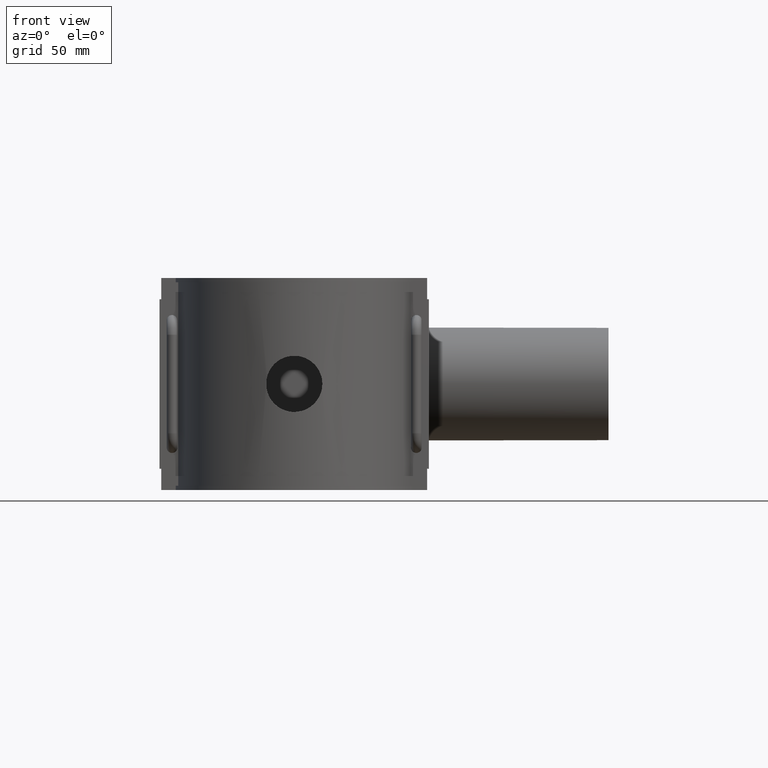
[diagram: clean part render]
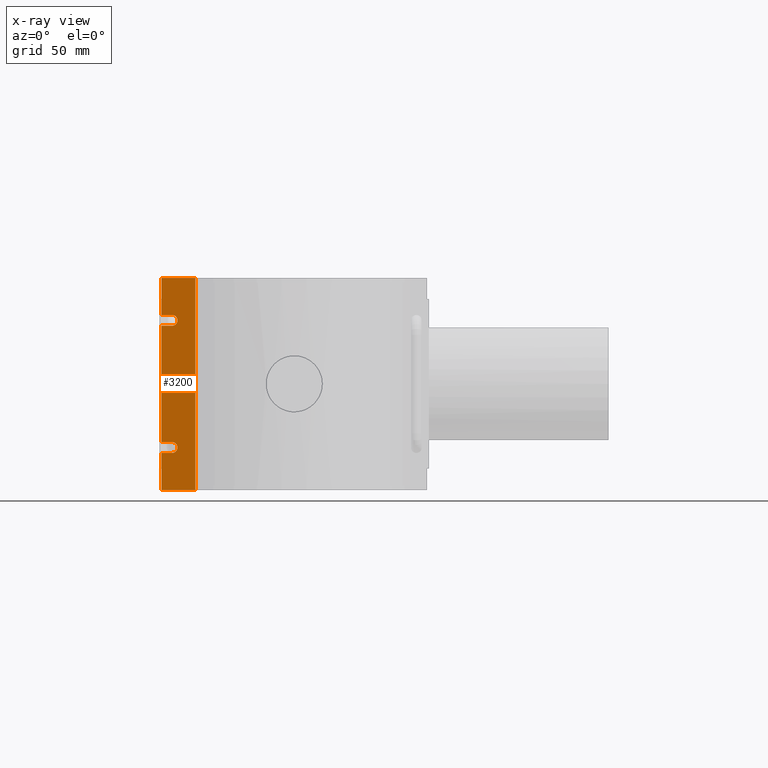
[diagram: x-ray — body ghosted, one internal face saturated and labeled with its STEP entity id]
A machine part, front view, then the same camera in x-ray: the body is ghosted and one INTERNAL B-rep face — a face not visible from any outside direction — is saturated and labeled: STEP entity #3200.
In plain terms, the highlighted planar face has unit normal (0, -1, 0).
Its self-contained STEP definition (entity closure, byte-faithful):
#244=LINE('',#6187,#523);
#247=LINE('',#6194,#526);
#249=LINE('',#6198,#528);
#252=LINE('',#6202,#531);
#254=LINE('',#6206,#533);
#255=LINE('',#6211,#534);
#257=LINE('',#6215,#536);
#260=LINE('',#6219,#539);
#261=LINE('',#6224,#540);
#263=LINE('',#6227,#542);
#265=LINE('',#6231,#544);
#310=LINE('',#6531,#589);
#311=LINE('',#6534,#590);
#312=LINE('',#6536,#591);
#523=VECTOR('',#4128,6.);
#526=VECTOR('',#4135,6.);
#528=VECTOR('',#4139,0.0243346729777727);
#531=VECTOR('',#4142,6.);
#533=VECTOR('',#4146,0.0243346729777727);
#534=VECTOR('',#4153,0.0243346729777727);
#536=VECTOR('',#4157,6.);
#539=VECTOR('',#4160,0.0243346729777727);
#540=VECTOR('',#4167,20.6);
#542=VECTOR('',#4171,64.8);
#544=VECTOR('',#4175,20.6);
#589=VECTOR('',#4322,118.);
#590=VECTOR('',#4327,19.0000227272775);
#591=VECTOR('',#4330,19.0000227272775);
#931=FACE_OUTER_BOUND('',#1172,.T.);
#1172=EDGE_LOOP('',(#2854,#2855,#2856,#2857,#2858,#2859,#2860,#2861,#2862,
#2863,#2864,#2865,#2866,#2867,#2868,#2869));
#1269=CIRCLE('',#3426,3.);
#1270=CIRCLE('',#3430,3.);
#1513=VERTEX_POINT('',#6128);
#1514=VERTEX_POINT('',#6130);
#1516=VERTEX_POINT('',#6135);
#1517=VERTEX_POINT('',#6137);
#1530=VERTEX_POINT('',#6185);
#1532=VERTEX_POINT('',#6193);
#1533=VERTEX_POINT('',#6197);
#1534=VERTEX_POINT('',#6200);
#1535=VERTEX_POINT('',#6204);
#1536=VERTEX_POINT('',#6210);
#1537=VERTEX_POINT('',#6214);
#1538=VERTEX_POINT('',#6217);
#1539=VERTEX_POINT('',#6223);
#1540=VERTEX_POINT('',#6229);
#1581=VERTEX_POINT('',#6528);
#1582=VERTEX_POINT('',#6530);
#1915=EDGE_CURVE('',#1513,#1530,#244,.T.);
#1918=EDGE_CURVE('',#1532,#1517,#247,.T.);
#1920=EDGE_CURVE('',#1533,#1516,#249,.T.);
#1923=EDGE_CURVE('',#1516,#1534,#252,.T.);
#1925=EDGE_CURVE('',#1517,#1535,#254,.T.);
#1926=EDGE_CURVE('',#1535,#1533,#1269,.T.);
#1927=EDGE_CURVE('',#1536,#1513,#255,.T.);
#1929=EDGE_CURVE('',#1537,#1514,#257,.T.);
#1932=EDGE_CURVE('',#1514,#1538,#260,.T.);
#1933=EDGE_CURVE('',#1538,#1536,#1270,.T.);
#1934=EDGE_CURVE('',#1537,#1539,#261,.T.);
#1936=EDGE_CURVE('',#1532,#1530,#263,.T.);
#1938=EDGE_CURVE('',#1540,#1534,#265,.T.);
#2009=EDGE_CURVE('',#1581,#1582,#310,.T.);
#2011=EDGE_CURVE('',#1539,#1581,#311,.T.);
#2012=EDGE_CURVE('',#1582,#1540,#312,.T.);
#2854=ORIENTED_EDGE('',*,*,#1920,.T.);
#2855=ORIENTED_EDGE('',*,*,#1923,.T.);
#2856=ORIENTED_EDGE('',*,*,#1938,.F.);
#2857=ORIENTED_EDGE('',*,*,#2012,.F.);
#2858=ORIENTED_EDGE('',*,*,#2009,.F.);
#2859=ORIENTED_EDGE('',*,*,#2011,.F.);
#2860=ORIENTED_EDGE('',*,*,#1934,.F.);
#2861=ORIENTED_EDGE('',*,*,#1929,.T.);
#2862=ORIENTED_EDGE('',*,*,#1932,.T.);
#2863=ORIENTED_EDGE('',*,*,#1933,.T.);
#2864=ORIENTED_EDGE('',*,*,#1927,.T.);
#2865=ORIENTED_EDGE('',*,*,#1915,.T.);
#2866=ORIENTED_EDGE('',*,*,#1936,.F.);
#2867=ORIENTED_EDGE('',*,*,#1918,.T.);
#2868=ORIENTED_EDGE('',*,*,#1925,.T.);
#2869=ORIENTED_EDGE('',*,*,#1926,.T.);
#3016=PLANE('',#3489);
#3200=ADVANCED_FACE('',(#931),#3016,.F.);
#3426=AXIS2_PLACEMENT_3D('',#6208,#4149,#4150);
#3430=AXIS2_PLACEMENT_3D('',#6221,#4163,#4164);
#3489=AXIS2_PLACEMENT_3D('',#6538,#4333,#4334);
#4128=DIRECTION('',(-1.,-5.27449705533488E-17,0.));
#4135=DIRECTION('',(1.,5.27449705533488E-17,0.));
#4139=DIRECTION('',(-1.,-5.27449705533489E-17,7.37158929503087E-16));
#4142=DIRECTION('',(-1.,-5.27449705533488E-17,7.37158929503087E-16));
#4146=DIRECTION('',(1.,5.27449705533489E-17,0.));
#4149=DIRECTION('center_axis',(5.27449705533489E-17,-1.,0.));
#4150=DIRECTION('ref_axis',(-1.,0.,0.));
#4153=DIRECTION('',(-1.,-5.27449705533489E-17,0.));
#4157=DIRECTION('',(1.,5.27449705533488E-17,0.));
#4160=DIRECTION('',(1.,5.27449705533489E-17,0.));
#4163=DIRECTION('center_axis',(5.27449705533489E-17,-1.,0.));
#4164=DIRECTION('ref_axis',(-1.,0.,0.));
#4167=DIRECTION('',(0.,0.,-1.));
#4171=DIRECTION('',(0.,0.,-1.));
#4175=DIRECTION('',(0.,0.,-1.));
#4322=DIRECTION('',(0.,0.,1.));
#4327=DIRECTION('',(1.,5.27449705533489E-17,0.));
#4330=DIRECTION('',(-1.,-5.27449705533489E-17,0.));
#4333=DIRECTION('center_axis',(5.27449705533489E-17,-1.,0.));
#4334=DIRECTION('ref_axis',(1.,5.27355936696949E-17,0.));
#6128=CARTESIAN_POINT('',(-68.,-0.0500000000000078,-32.4));
#6130=CARTESIAN_POINT('',(-68.,-0.0500000000000078,-38.4));
#6135=CARTESIAN_POINT('',(-68.,-0.0500000000000078,38.4));
#6137=CARTESIAN_POINT('',(-68.,-0.0500000000000078,32.4));
#6185=CARTESIAN_POINT('',(-74.,-0.0500000000000078,-32.4));
#6187=CARTESIAN_POINT('',(-70.9878326635111,-0.0500000000000078,-32.4));
#6193=CARTESIAN_POINT('',(-74.,-0.0500000000000078,32.4));
#6194=CARTESIAN_POINT('',(-74.,-0.0500000000000078,32.4));
#6197=CARTESIAN_POINT('',(-67.9756653270222,-0.0500000000000078,38.4));
#6198=CARTESIAN_POINT('',(-70.9878326635111,-0.0500000000000078,38.4));
#6200=CARTESIAN_POINT('',(-74.,-0.0500000000000078,38.4));
#6202=CARTESIAN_POINT('',(-70.9878326635111,-0.0500000000000078,38.4));
#6204=CARTESIAN_POINT('',(-67.9756653270222,-0.0500000000000078,32.4));
#6206=CARTESIAN_POINT('',(-74.,-0.0500000000000078,32.4));
#6208=CARTESIAN_POINT('Origin',(-67.9756653270222,-0.0500000000000078,35.4));
#6210=CARTESIAN_POINT('',(-67.9756653270222,-0.0500000000000078,-32.4));
#6211=CARTESIAN_POINT('',(-70.9878326635111,-0.0500000000000078,-32.4));
#6214=CARTESIAN_POINT('',(-74.,-0.0500000000000078,-38.4));
#6215=CARTESIAN_POINT('',(-74.,-0.0500000000000078,-38.4));
#6217=CARTESIAN_POINT('',(-67.9756653270222,-0.0500000000000078,-38.4));
#6219=CARTESIAN_POINT('',(-74.,-0.0500000000000078,-38.4));
#6221=CARTESIAN_POINT('Origin',(-67.9756653270222,-0.0500000000000078,-35.4));
#6223=CARTESIAN_POINT('',(-74.,-0.0500000000000078,-59.));
#6224=CARTESIAN_POINT('',(-74.,-0.0500000000000078,-29.5));
#6227=CARTESIAN_POINT('',(-74.,-0.0500000000000078,-29.5));
#6229=CARTESIAN_POINT('',(-74.,-0.0500000000000078,59.));
#6231=CARTESIAN_POINT('',(-74.,-0.0500000000000078,-29.5));
#6528=CARTESIAN_POINT('',(-54.9999772727226,-0.0500000000000068,-59.));
#6530=CARTESIAN_POINT('',(-54.9999772727226,-0.0500000000000068,59.));
#6531=CARTESIAN_POINT('',(-54.9999772727226,-0.0500000000000068,0.));
#6534=CARTESIAN_POINT('',(-72.0235519553924,-0.0500000000000077,-59.));
#6536=CARTESIAN_POINT('',(-72.0235519553924,-0.0500000000000077,59.));
#6538=CARTESIAN_POINT('Origin',(-74.,-0.0500000000000078,-59.));